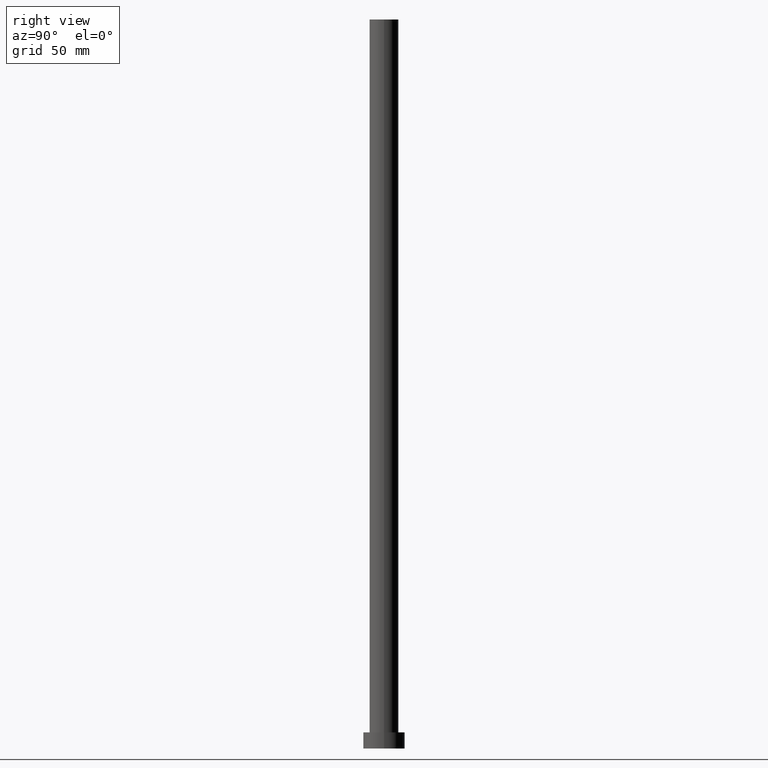
[diagram: clean part render]
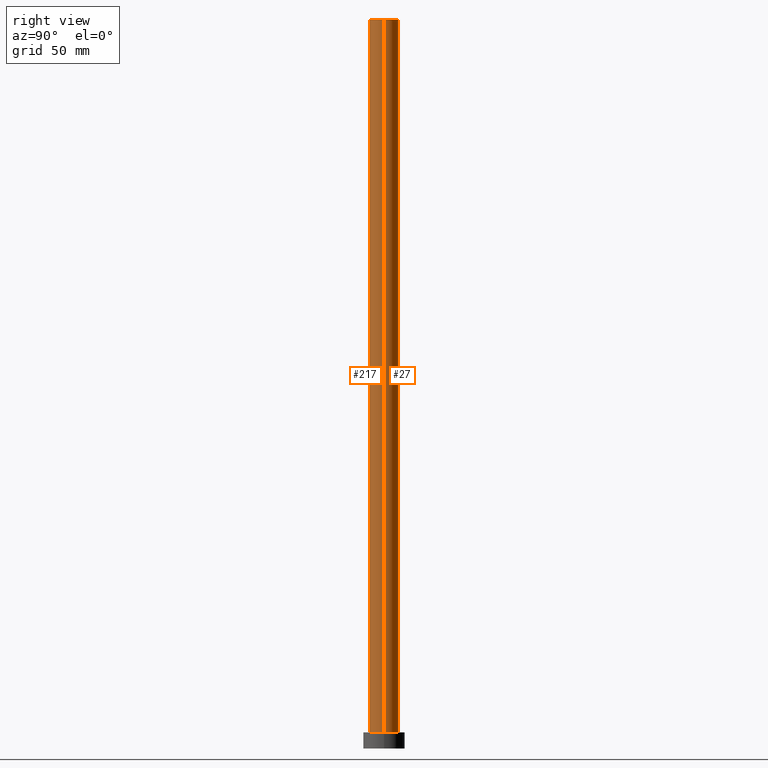
[diagram: same view with one multi-face feature highlighted, each face labeled with its STEP entity id]
A machine part, right view. The highlighted faces form ONE feature: a constant-radius fillet chain: 2 tangent blend faces with common blend radius 6.25 mm. The faces share edges in the B-rep.
Their STEP definitions:
[1] entity #217 (Cylinder):
#1 = VERTEX_POINT ( 'NONE', #12 ) ;
#2 = CYLINDRICAL_SURFACE ( 'NONE', #218, 6.250000000000000000 ) ;
#9 = CARTESIAN_POINT ( 'NONE',  ( 6.250000000000000000, 7.654042494670957606E-16, 7.000000000000000000 ) ) ;
#11 = CARTESIAN_POINT ( 'NONE',  ( 0.000000000000000000, 0.000000000000000000, 7.000000000000000000 ) ) ;
#12 = CARTESIAN_POINT ( 'NONE',  ( -6.250000000000000000, 0.000000000000000000, 315.0000000000000000 ) ) ;
#28 = DIRECTION ( 'NONE',  ( 1.000000000000000000, 0.000000000000000000, 0.000000000000000000 ) ) ;
#30 = CARTESIAN_POINT ( 'NONE',  ( 6.250000000000000000, 7.654042494670957606E-16, 315.0000000000000000 ) ) ;
#48 = CARTESIAN_POINT ( 'NONE',  ( 0.000000000000000000, 0.000000000000000000, 315.0000000000000000 ) ) ;
#51 = VERTEX_POINT ( 'NONE', #184 ) ;
#65 = DIRECTION ( 'NONE',  ( -0.000000000000000000, -0.000000000000000000, -1.000000000000000000 ) ) ;
#66 = ORIENTED_EDGE ( 'NONE', *, *, #176, .F. ) ;
#69 = DIRECTION ( 'NONE',  ( -1.000000000000000000, 0.000000000000000000, 0.000000000000000000 ) ) ;
#70 = EDGE_LOOP ( 'NONE', ( #112, #66, #118, #181 ) ) ;
#83 = DIRECTION ( 'NONE',  ( 0.000000000000000000, 0.000000000000000000, 1.000000000000000000 ) ) ;
#85 = DIRECTION ( 'NONE',  ( 1.000000000000000000, 0.000000000000000000, 0.000000000000000000 ) ) ;
#87 = CIRCLE ( 'NONE', #138, 6.250000000000000000 ) ;
#108 = DIRECTION ( 'NONE',  ( -0.000000000000000000, -0.000000000000000000, -1.000000000000000000 ) ) ;
#112 = ORIENTED_EDGE ( 'NONE', *, *, #236, .F. ) ;
#114 = VERTEX_POINT ( 'NONE', #9 ) ;
#118 = ORIENTED_EDGE ( 'NONE', *, *, #169, .T. ) ;
#129 = LINE ( 'NONE', #30, #250 ) ;
#134 = VECTOR ( 'NONE', #65, 1000.000000000000000 ) ;
#138 = AXIS2_PLACEMENT_3D ( 'NONE', #188, #83, #28 ) ;
#144 = VERTEX_POINT ( 'NONE', #245 ) ;
#151 = EDGE_CURVE ( 'NONE', #51, #114, #152, .T. ) ;
#152 = CIRCLE ( 'NONE', #190, 6.250000000000000000 ) ;
#159 = DIRECTION ( 'NONE',  ( -0.000000000000000000, -0.000000000000000000, -1.000000000000000000 ) ) ;
#166 = FACE_OUTER_BOUND ( 'NONE', #70, .T. ) ;
#169 = EDGE_CURVE ( 'NONE', #1, #51, #191, .T. ) ;
#176 = EDGE_CURVE ( 'NONE', #1, #144, #87, .T. ) ;
#181 = ORIENTED_EDGE ( 'NONE', *, *, #151, .T. ) ;
#184 = CARTESIAN_POINT ( 'NONE',  ( -6.250000000000000000, 0.000000000000000000, 7.000000000000000000 ) ) ;
#185 = DIRECTION ( 'NONE',  ( 0.000000000000000000, 0.000000000000000000, 1.000000000000000000 ) ) ;
#188 = CARTESIAN_POINT ( 'NONE',  ( 0.000000000000000000, 0.000000000000000000, 315.0000000000000000 ) ) ;
#190 = AXIS2_PLACEMENT_3D ( 'NONE', #11, #185, #85 ) ;
#191 = LINE ( 'NONE', #203, #134 ) ;
#203 = CARTESIAN_POINT ( 'NONE',  ( -6.250000000000000000, 0.000000000000000000, 315.0000000000000000 ) ) ;
#217 = ADVANCED_FACE ( 'NONE', ( #166 ), #2, .T. ) ;
#218 = AXIS2_PLACEMENT_3D ( 'NONE', #48, #159, #69 ) ;
#236 = EDGE_CURVE ( 'NONE', #144, #114, #129, .T. ) ;
#245 = CARTESIAN_POINT ( 'NONE',  ( 6.250000000000000000, 7.654042494670957606E-16, 315.0000000000000000 ) ) ;
#250 = VECTOR ( 'NONE', #108, 1000.000000000000000 ) ;
[2] entity #27 (Cylinder):
#1 = VERTEX_POINT ( 'NONE', #12 ) ;
#9 = CARTESIAN_POINT ( 'NONE',  ( 6.250000000000000000, 7.654042494670957606E-16, 7.000000000000000000 ) ) ;
#12 = CARTESIAN_POINT ( 'NONE',  ( -6.250000000000000000, 0.000000000000000000, 315.0000000000000000 ) ) ;
#15 = AXIS2_PLACEMENT_3D ( 'NONE', #241, #247, #67 ) ;
#26 = DIRECTION ( 'NONE',  ( 1.000000000000000000, 0.000000000000000000, 0.000000000000000000 ) ) ;
#27 = ADVANCED_FACE ( 'NONE', ( #207 ), #124, .T. ) ;
#29 = DIRECTION ( 'NONE',  ( -1.000000000000000000, 0.000000000000000000, 0.000000000000000000 ) ) ;
#30 = CARTESIAN_POINT ( 'NONE',  ( 6.250000000000000000, 7.654042494670957606E-16, 315.0000000000000000 ) ) ;
#46 = ORIENTED_EDGE ( 'NONE', *, *, #161, .F. ) ;
#51 = VERTEX_POINT ( 'NONE', #184 ) ;
#65 = DIRECTION ( 'NONE',  ( -0.000000000000000000, -0.000000000000000000, -1.000000000000000000 ) ) ;
#67 = DIRECTION ( 'NONE',  ( 1.000000000000000000, 0.000000000000000000, 0.000000000000000000 ) ) ;
#86 = ORIENTED_EDGE ( 'NONE', *, *, #236, .T. ) ;
#108 = DIRECTION ( 'NONE',  ( -0.000000000000000000, -0.000000000000000000, -1.000000000000000000 ) ) ;
#110 = AXIS2_PLACEMENT_3D ( 'NONE', #220, #147, #26 ) ;
#114 = VERTEX_POINT ( 'NONE', #9 ) ;
#116 = EDGE_LOOP ( 'NONE', ( #46, #86, #123, #163 ) ) ;
#123 = ORIENTED_EDGE ( 'NONE', *, *, #153, .T. ) ;
#124 = CYLINDRICAL_SURFACE ( 'NONE', #249, 6.250000000000000000 ) ;
#126 = CIRCLE ( 'NONE', #15, 6.250000000000000000 ) ;
#129 = LINE ( 'NONE', #30, #250 ) ;
#134 = VECTOR ( 'NONE', #65, 1000.000000000000000 ) ;
#144 = VERTEX_POINT ( 'NONE', #245 ) ;
#147 = DIRECTION ( 'NONE',  ( 0.000000000000000000, 0.000000000000000000, 1.000000000000000000 ) ) ;
#153 = EDGE_CURVE ( 'NONE', #114, #51, #126, .T. ) ;
#161 = EDGE_CURVE ( 'NONE', #144, #1, #232, .T. ) ;
#163 = ORIENTED_EDGE ( 'NONE', *, *, #169, .F. ) ;
#169 = EDGE_CURVE ( 'NONE', #1, #51, #191, .T. ) ;
#184 = CARTESIAN_POINT ( 'NONE',  ( -6.250000000000000000, 0.000000000000000000, 7.000000000000000000 ) ) ;
#191 = LINE ( 'NONE', #203, #134 ) ;
#203 = CARTESIAN_POINT ( 'NONE',  ( -6.250000000000000000, 0.000000000000000000, 315.0000000000000000 ) ) ;
#204 = CARTESIAN_POINT ( 'NONE',  ( 0.000000000000000000, 0.000000000000000000, 315.0000000000000000 ) ) ;
#207 = FACE_OUTER_BOUND ( 'NONE', #116, .T. ) ;
#220 = CARTESIAN_POINT ( 'NONE',  ( 0.000000000000000000, 0.000000000000000000, 315.0000000000000000 ) ) ;
#227 = DIRECTION ( 'NONE',  ( -0.000000000000000000, -0.000000000000000000, -1.000000000000000000 ) ) ;
#232 = CIRCLE ( 'NONE', #110, 6.250000000000000000 ) ;
#236 = EDGE_CURVE ( 'NONE', #144, #114, #129, .T. ) ;
#241 = CARTESIAN_POINT ( 'NONE',  ( 0.000000000000000000, 0.000000000000000000, 7.000000000000000000 ) ) ;
#245 = CARTESIAN_POINT ( 'NONE',  ( 6.250000000000000000, 7.654042494670957606E-16, 315.0000000000000000 ) ) ;
#247 = DIRECTION ( 'NONE',  ( 0.000000000000000000, 0.000000000000000000, 1.000000000000000000 ) ) ;
#249 = AXIS2_PLACEMENT_3D ( 'NONE', #204, #227, #29 ) ;
#250 = VECTOR ( 'NONE', #108, 1000.000000000000000 ) ;